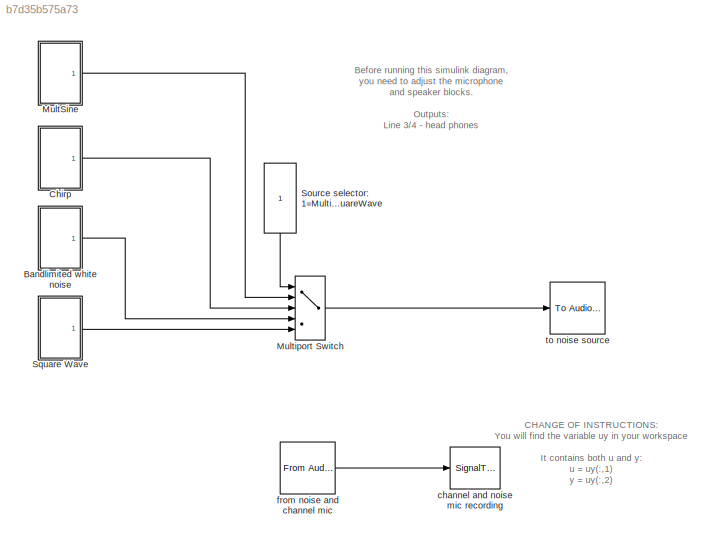
MODEL slx_b7d35b575a73
KIND model
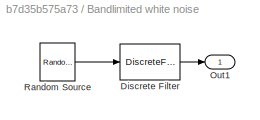
BLOCK [SubSystem] Bandlimited white noise
  Ports = [0, 1]
  RequestExecContextInheritance = off
BLOCK [DiscreteFilter] Bandlimited white noise/Discrete Filter
  Denominator = [1.000000 -0.000000 -2.547368 0.000000 2.994845 -0.000000 -1.778046 0.000000 0.534570 -0.000000 -0.024287]
  InputPortMap = u0
  Numerator = [0.277472 0.000000 -1.387362 0.000000 2.774724 0.000000 -2.774724 0.000000 1.387362 0.000000 -0.277472]*0.3
  Ports = [1, 1]
  SampleTime = sampletime
BLOCK [Outport] Bandlimited white noise/Out1
  IconDisplay = Port number
BLOCK [Reference] Bandlimited white noise/Random Source  REF=dspsrcs4/Random
Source
  CltLength = 12
  DataType = Double
  IsInherit = off
  MaxVal = 1
  MeanVal = 0
  MinVal = -1
  NormMethod = Ziggurat
  OutComplex = Real
  Ports = [0, 1]
  RepMode = Specify seed
  SampFrame = 1
  SampMode = Discrete
  SampTime = sampletime
  SourceBlock = dspsrcs4/Random\nSource
  SourceType = Random Source
  SrcType = Gaussian
  UserDataPersistent = on
  VarVal = 0.6
  rawSeed = 1
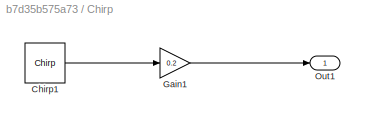
BLOCK [SubSystem] Chirp
  Ports = [0, 1]
  RequestExecContextInheritance = off
BLOCK [Reference] Chirp/Chirp1  REF=dspsrcs4/Chirp
  Ports = [0, 1]
  SourceBlock = dspsrcs4/Chirp
  SourceType = Chirp
  Ts = sampletime
  Tsweep = 10
  datatype = Double
  f0 = 600
  f1 = 800
  mode = Bidirectional
  phase = 0
  spf = 1
  sweep = Linear
  t1 = 1
BLOCK [Gain] Chirp/Gain1
  Gain = 0.2
BLOCK [Outport] Chirp/Out1
  IconDisplay = Port number
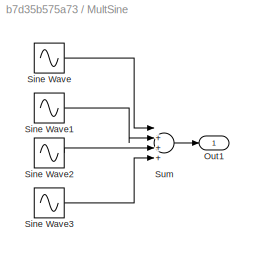
BLOCK [SubSystem] MultSine
  Ports = [0, 1]
  RequestExecContextInheritance = off
BLOCK [Outport] MultSine/Out1
  IconDisplay = Port number
BLOCK [Sin] MultSine/Sine Wave
  Amplitude = .1
  Frequency = 2*2400
  Ports = [0, 1]
  SampleTime = sampletime
BLOCK [Sin] MultSine/Sine Wave1
  Amplitude = .1
  Frequency = 2*3000
  Ports = [0, 1]
  SampleTime = sampletime
BLOCK [Sin] MultSine/Sine Wave2
  Amplitude = .1
  Frequency = 2*3600
  Ports = [0, 1]
  SampleTime = sampletime
BLOCK [Sin] MultSine/Sine Wave3
  Amplitude = .1
  Frequency = 2*4200
  Ports = [0, 1]
  SampleTime = sampletime
BLOCK [Sum] MultSine/Sum
  Inputs = |++++
  Ports = [4, 1]
BLOCK [MultiPortSwitch] Multiport Switch
  Inputs = 4
  Ports = [5, 1]
BLOCK [Constant] Source selector: 1=MultiSine 2=Chirp 3=White noise 4=SquareWave
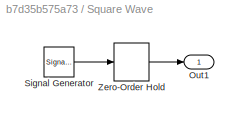
BLOCK [SubSystem] Square Wave
  Ports = [0, 1]
  RequestExecContextInheritance = off
BLOCK [Outport] Square Wave/Out1
  IconDisplay = Port number
BLOCK [SignalGenerator] Square Wave/Signal Generator
  Amplitude = .1
  Frequency = 100
  Ports = [0, 1]
  WaveForm = square
BLOCK [ZeroOrderHold] Square Wave/Zero-Order Hold
  SampleTime = sampletime
BLOCK [SignalToWorkspace] channel and noise mic recording
  CopyFcn = dspblkcopystw(gcbh);
  MaxDataPoints = inf
  Ports = [1]
  VariableName = uy
BLOCK [Reference] from noise and channel mic  REF=dspsrcs4/From Audio
Device
  Ports = [0, 1]
  SourceBlock = dspsrcs4/From Audio\nDevice
  SourceType = From Audio Device
  autoBufferSize = on
  bufferSize = 4096
  defaultInputChannelMapping = on
  deviceDatatype = Determine from output data type
  deviceName = FCA1616 Mic 1/2 (3- Behringer FCA1616 WDM)
  frameSize = 64
  inputChannelMapping = 1:2
  numChannels = 2
  outputDatatype = double
  queueDuration = 0.1
  sampleRate = 1/sampletime
BLOCK [Reference] to noise source  REF=dspsnks4/To Audio
Device
  Ports = [1]
  SourceBlock = dspsnks4/To Audio\nDevice
  SourceType = To Audio Device
  autoBufferSize = on
  bufferSize = 4096
  defaultOutputChannelMapping = on
  deviceDatatype = Determine from input data type
  deviceName = FCA1616 Line 7/8 (3- Behringer FCA1616 WDM)
  inheritSampleRate = off
  outputChannelMapping = 1:2
  queueDuration = 1.0
  sampleRate = 1/sampletime
ANNOTATION (root): Before running this simulink diagram, you need to adjust the microphone and speaker blocks. Outputs: Line 3/4 - head phones Line 5/6 - music source Line 7/8 - noise source Inputs: Mic 1/2 - noise and channel microphone
ANNOTATION (root): CHANGE OF INSTRUCTIONS: You will find the variable uy in your workspace It contains both u and y: u = uy(:,1) y = uy(:,2)
LINE Bandlimited white noise/Discrete Filter:1 -> Bandlimited white noise/Out1:1
LINE Bandlimited white noise/Random Source:1 -> Bandlimited white noise/Discrete Filter:1
LINE Bandlimited white noise:1 -> Multiport Switch:4
LINE Chirp/Chirp1:1 -> Chirp/Gain1:1
LINE Chirp/Gain1:1 -> Chirp/Out1:1
LINE Chirp:1 -> Multiport Switch:3
LINE MultSine/Sine Wave1:1 -> MultSine/Sum:2
LINE MultSine/Sine Wave2:1 -> MultSine/Sum:3
LINE MultSine/Sine Wave3:1 -> MultSine/Sum:4
LINE MultSine/Sine Wave:1 -> MultSine/Sum:1
LINE MultSine/Sum:1 -> MultSine/Out1:1
LINE MultSine:1 -> Multiport Switch:2
LINE Multiport Switch:1 -> to noise source:1
LINE Source selector: 1=MultiSine 2=Chirp 3=White noise 4=SquareWave:1 -> Multiport Switch:1
LINE Square Wave/Signal Generator:1 -> Square Wave/Zero-Order Hold:1
LINE Square Wave/Zero-Order Hold:1 -> Square Wave/Out1:1
LINE Square Wave:1 -> Multiport Switch:5
LINE from noise and channel mic:1 -> channel and noise mic recording:1
